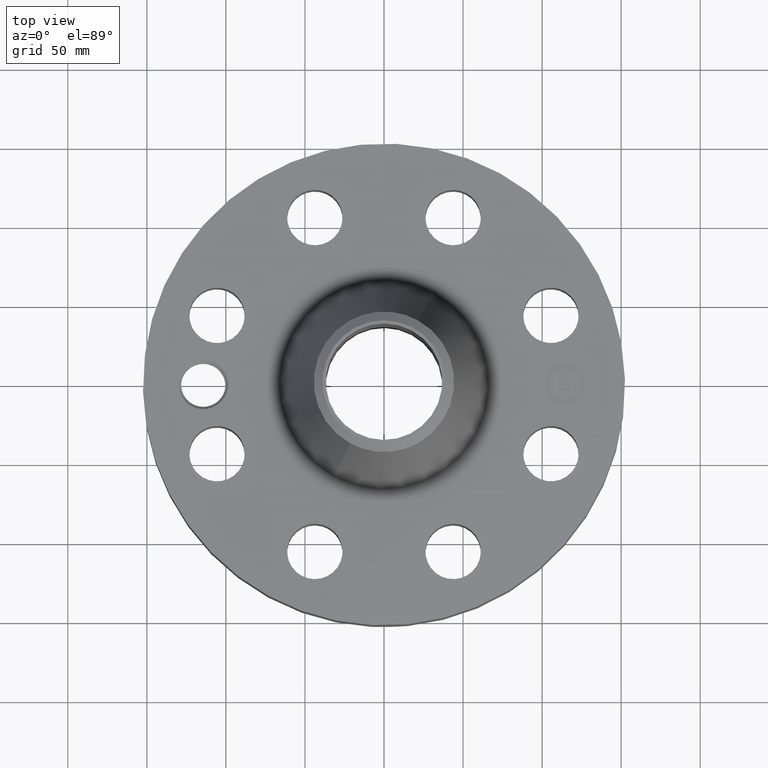
[diagram: clean part render]
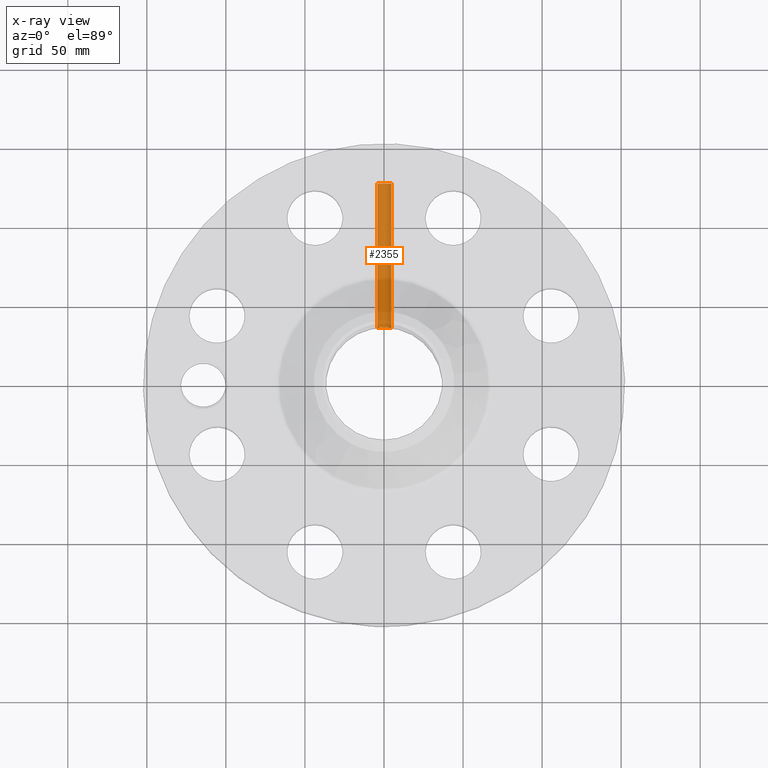
[diagram: x-ray — body ghosted, one internal face saturated and labeled with its STEP entity id]
A machine part, top view, then the same camera in x-ray: the body is ghosted and one INTERNAL B-rep face — a face not visible from any outside direction — is saturated and labeled: STEP entity #2355.
In plain terms, the highlighted cylindrical surface (edge-blend (fillet) strip) has radius 4.7625 mm, axis along (-0, -1, 0).
Its self-contained STEP definition (entity closure, byte-faithful):
#2328=AXIS2_PLACEMENT_3D('Cylinder Axis2P3D',#2325,#2326,#2327) ;
#2339=AXIS2_PLACEMENT_3D('Circle Axis2P3D',#2337,#2338,$) ;
#1249=CARTESIAN_POINT('Vertex',(0.164546730355,1.44063332377,1.02989228849)) ;
#1251=CARTESIAN_POINT('Vertex',(-0.164546730355,1.44063332377,0.850107711515)) ;
#1255=CARTESIAN_POINT('Control Point',(-0.164546730355,1.44063332377,0.850107711515)) ;
#1256=CARTESIAN_POINT('Control Point',(-0.153731070918,1.44186867031,0.830309779713)) ;
#1257=CARTESIAN_POINT('Control Point',(-0.139944075106,1.4433405746,0.812149885816)) ;
#1258=CARTESIAN_POINT('Control Point',(-0.123510243046,1.44489924446,0.796210668084)) ;
#1259=CARTESIAN_POINT('Control Point',(-0.0771457667494,1.44849158589,0.763196869126)) ;
#1260=CARTESIAN_POINT('Control Point',(-0.0211416426392,1.45046278414,0.74900225578)) ;
#1261=CARTESIAN_POINT('Control Point',(0.0138877540662,1.45055904578,0.748336325563)) ;
#1262=CARTESIAN_POINT('Control Point',(0.0704180054538,1.4488559579,0.760406332184)) ;
#1263=CARTESIAN_POINT('Control Point',(0.118016251881,1.44536877231,0.79166340942)) ;
#1264=CARTESIAN_POINT('Control Point',(0.135050957048,1.44381724598,0.806987403631)) ;
#1265=CARTESIAN_POINT('Control Point',(0.174424603891,1.439735322,0.855004056753)) ;
#1266=CARTESIAN_POINT('Control Point',(0.192227243463,1.43719597583,0.915976423192)) ;
#1267=CARTESIAN_POINT('Control Point',(0.192994709919,1.43707883877,0.956812274152)) ;
#1268=CARTESIAN_POINT('Control Point',(0.183180576883,1.43850499696,0.995783261214)) ;
#1269=CARTESIAN_POINT('Control Point',(0.164546730355,1.44063332377,1.02989228849)) ;
#2325=CARTESIAN_POINT('Axis2P3D Location',(-5.60205685716E-016,5.99606299215,0.940000000004)) ;
#2330=CARTESIAN_POINT('Line Origine',(0.164546730355,3.23831336957,1.02989228849)) ;
#2334=CARTESIAN_POINT('Vertex',(0.164546730355,5.03930101281,1.02989228849)) ;
#2337=CARTESIAN_POINT('Axis2P3D Location',(-7.35960010047E-016,5.03930101281,0.940000000004)) ;
#2341=CARTESIAN_POINT('Vertex',(-0.164546730355,5.03930101281,0.850107711515)) ;
#2344=CARTESIAN_POINT('Line Origine',(-0.164546730355,3.23831336957,0.850107711515)) ;
#2326=DIRECTION('Axis2P3D Direction',(-7.2321661367E-018,-0.0393700787402,0.)) ;
#2327=DIRECTION('Axis2P3D XDirection',(0.0345504945626,-6.34682288626E-018,0.0188750212049)) ;
#2331=DIRECTION('Vector Direction',(-7.26182294255E-018,-0.0393700787402,0.)) ;
#2338=DIRECTION('Axis2P3D Direction',(-7.2321661367E-018,-0.0393700787402,0.)) ;
#2345=DIRECTION('Vector Direction',(-7.26182294255E-018,-0.0393700787402,0.)) ;
#2332=VECTOR('Line Direction',#2331,0.0393700787402) ;
#2346=VECTOR('Line Direction',#2345,0.0393700787402) ;
#2350=ORIENTED_EDGE('',*,*,#1270,.T.) ;
#2351=ORIENTED_EDGE('',*,*,#2336,.T.) ;
#2352=ORIENTED_EDGE('',*,*,#2343,.F.) ;
#2353=ORIENTED_EDGE('',*,*,#2348,.F.) ;
#2355=ADVANCED_FACE('PartBody',(#2354),#2329,.F.) ;
#1254=B_SPLINE_CURVE_WITH_KNOTS('',5,(#1255,#1256,#1257,#1258,#1259,#1260,#1261,#1262,#1263,#1264,#1265,#1266,#1267,#1268,#1269),.UNSPECIFIED.,.F.,.U.,(6,3,3,3,6),(0.,4.05789414977,10.1286634851,14.1897420012,21.1809178286),.UNSPECIFIED.) ;
#2340=CIRCLE('generated circle',#2339,0.187500000001) ;
#2329=CYLINDRICAL_SURFACE('generated cylinder',#2328,0.187500000001) ;
#1270=EDGE_CURVE('',#1252,#1250,#1254,.T.) ;
#2336=EDGE_CURVE('',#1250,#2335,#2333,.F.) ;
#2343=EDGE_CURVE('',#2342,#2335,#2340,.T.) ;
#2348=EDGE_CURVE('',#1252,#2342,#2347,.F.) ;
#2349=EDGE_LOOP('',(#2350,#2351,#2352,#2353)) ;
#2354=FACE_OUTER_BOUND('',#2349,.T.) ;
#2333=LINE('Line',#2330,#2332) ;
#2347=LINE('Line',#2344,#2346) ;
#1250=VERTEX_POINT('',#1249) ;
#1252=VERTEX_POINT('',#1251) ;
#2335=VERTEX_POINT('',#2334) ;
#2342=VERTEX_POINT('',#2341) ;